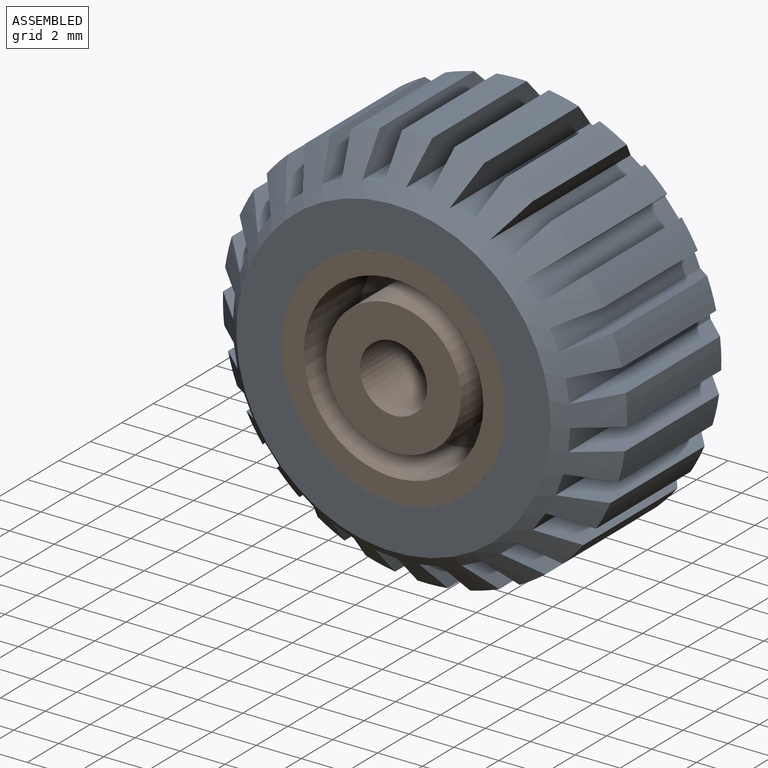
[diagram: assembled view]
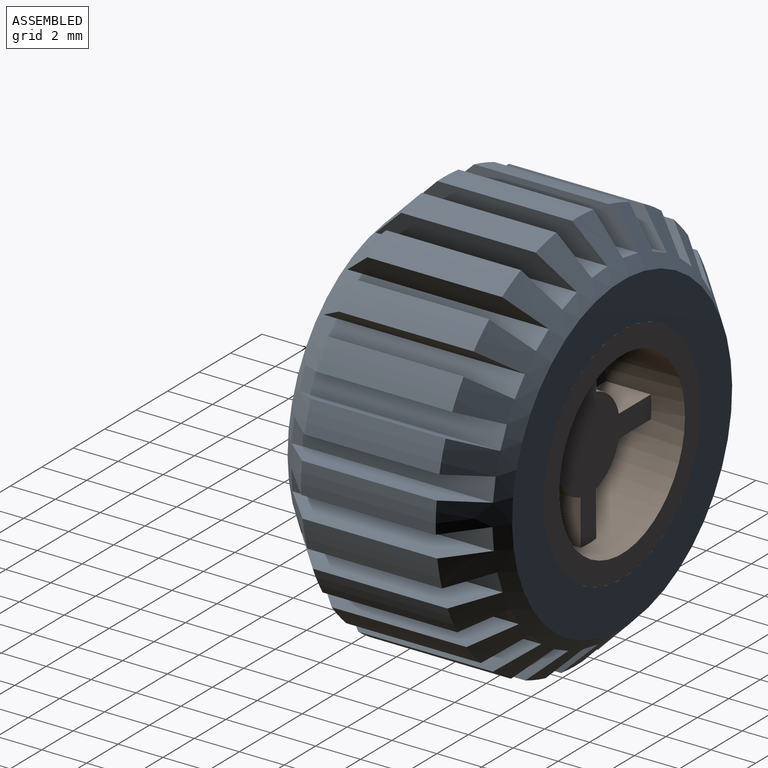
[diagram: assembled view, second angle]
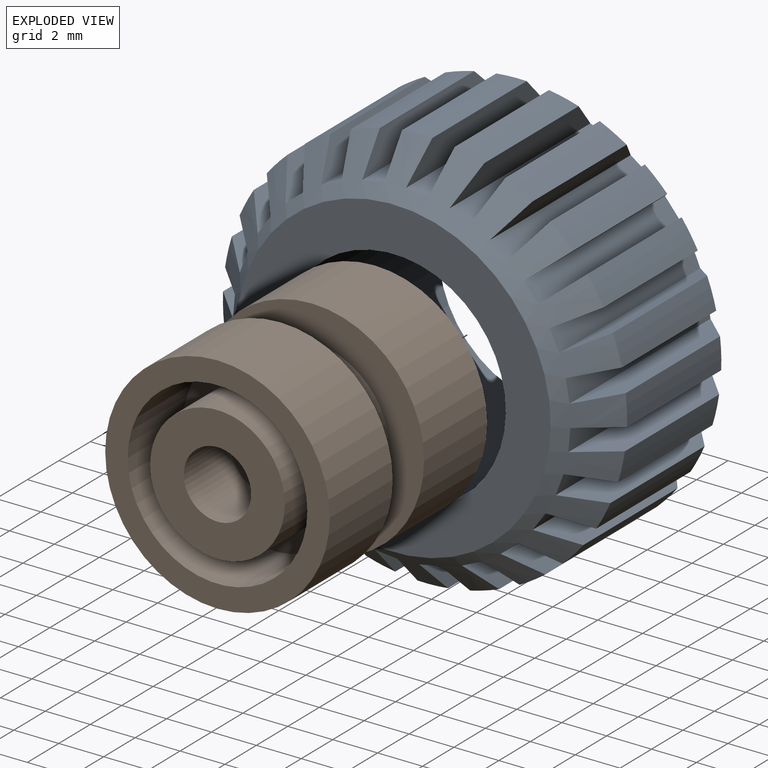
[diagram: exploded view]
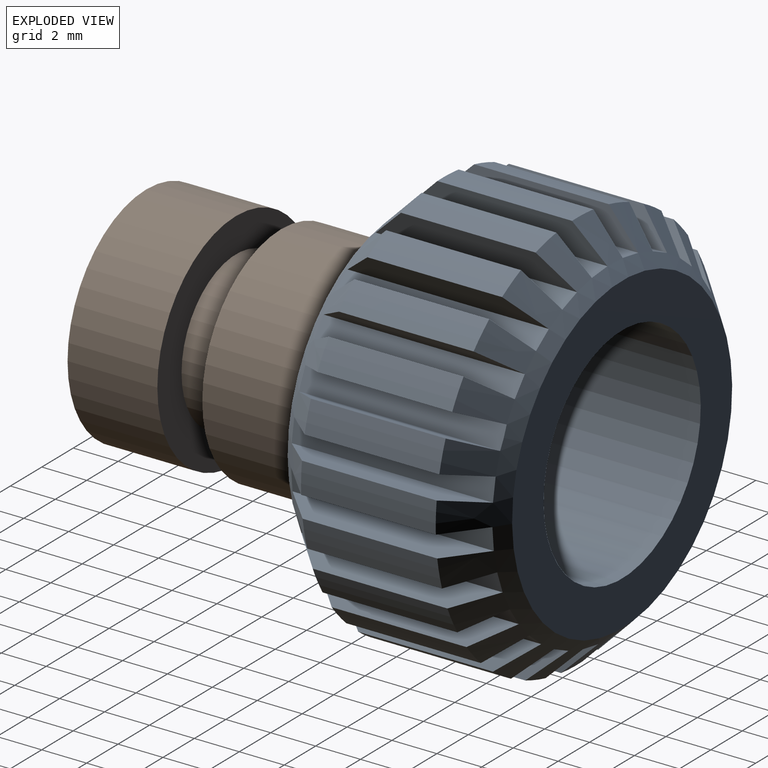
[diagram: exploded view, second angle]
ASSEMBLY  parts=2 mates=2
PART A: 101 faces, bbox 18x10x18 mm
  f0: cylinder r=9mm len=6mm, axis (0,1,0), area 8.1mm2, adj f1,f2,f31,f99
  f1: cone r=7mm half-angle=45deg, axis (0,1,0), area 91.5mm2, adj f0,f3,f4,f5,f6,f7,f8,f9
  f2: cone r=9mm half-angle=45deg, axis (0,-1,0), area 91.5mm2, adj f0,f3,f4,f5,f6,f7,f8,f9
  f3: cylinder r=9mm len=6mm, axis (0,1,0), area 8.1mm2, adj f1,f2,f96,f100
  f4: cylinder r=9mm len=6mm, axis (0,1,0), area 8.1mm2, adj f1,f2,f93,f97
  f5: cylinder r=9mm len=6mm, axis (0,1,0), area 8.1mm2, adj f1,f2,f90,f94
  f6: cylinder r=9mm len=6mm, axis (0,1,0), area 8.1mm2, adj f1,f2,f87,f91
  f7: cylinder r=9mm len=6mm, axis (0,1,0), area 8.1mm2, adj f1,f2,f84,f88
  f8: cylinder r=9mm len=6mm, axis (0,1,0), area 8.1mm2, adj f1,f2,f81,f85
  f9: cylinder r=9mm len=6mm, axis (0,1,0), area 8.1mm2, adj f1,f2,f78,f82
  f10: cylinder r=9mm len=6mm, axis (0,1,0), area 8.1mm2, adj f1,f2,f75,f79
  f11: cylinder r=9mm len=6mm, axis (0,1,0), area 8.1mm2, adj f1,f2,f72,f76
  f12: cylinder r=9mm len=6mm, axis (0,1,0), area 8.1mm2, adj f1,f2,f69,f73
  f13: cylinder r=9mm len=6mm, axis (0,1,0), area 8.1mm2, adj f1,f2,f66,f70
  f14: cylinder r=9mm len=6mm, axis (0,1,0), area 8.1mm2, adj f1,f2,f63,f67
  f15: cylinder r=9mm len=6mm, axis (0,1,0), area 8.1mm2, adj f1,f2,f60,f64
  f16: cylinder r=9mm len=6mm, axis (0,1,0), area 8.1mm2, adj f1,f2,f57,f61
  f17: cylinder r=9mm len=6mm, axis (0,1,0), area 8.1mm2, adj f1,f2,f54,f58
  f18: cylinder r=9mm len=6mm, axis (0,1,0), area 8.1mm2, adj f1,f2,f51,f55
  f19: cylinder r=9mm len=6mm, axis (0,1,0), area 8.1mm2, adj f1,f2,f48,f52
  f20: cylinder r=9mm len=6mm, axis (0,1,0), area 8.1mm2, adj f1,f2,f45,f49
  f21: cylinder r=9mm len=6mm, axis (0,1,0), area 8.1mm2, adj f1,f2,f42,f46
  f22: cylinder r=9mm len=6mm, axis (0,1,0), area 8.1mm2, adj f1,f2,f39,f43
  f23: cylinder r=9mm len=6mm, axis (0,1,0), area 8.1mm2, adj f1,f2,f36,f40
  f24: cylinder r=9mm len=6mm, axis (0,1,0), area 8.1mm2, adj f1,f2,f33,f37
  f25: cylinder r=9mm len=6mm, axis (0,1,0), area 8.1mm2, adj f1,f2,f30,f34
  f26: plane 14x14mm, normal (0,-1,0), area 75.4mm2, adj f1,f28
  f27: plane 14x14mm, normal (0,1,0), area 75.4mm2, adj f2,f28
  f28: cylinder r=5mm len=10mm, axis (0,1,0), area 314.2mm2, adj f26,f27
  f29: plane 9.05x1.05mm, normal (0,0,1), area 9mm2, adj f1,f2,f30,f31
  f30: plane 8.97x1.49mm, normal (-1,0,0), area 11.1mm2, adj f1,f2,f25,f29
  f31: plane 8.97x1.49mm, normal (1,0,0), area 11.1mm2, adj f0,f1,f2,f29
  f32: plane 9.05x1.01mm, normal (0.26,0,0.97), area 9mm2, adj f1,f2,f33,f34
  f33: plane 8.97x1.44mm, normal (-0.97,0,0.26), area 11.1mm2, adj f1,f2,f24,f32
  f34: plane 8.97x1.44mm, normal (0.97,0,-0.26), area 11.1mm2, adj f1,f2,f25,f32
  f35: plane 9.05x0.91mm, normal (0.5,0,0.87), area 9mm2, adj f1,f2,f36,f37
  f36: plane 8.97x1.3mm, normal (-0.87,0,0.5), area 11.1mm2, adj f1,f2,f23,f35
  f37: plane 8.97x1.3mm, normal (0.87,0,-0.5), area 11.1mm2, adj f1,f2,f24,f35
  f38: plane 9.05x0.75mm, normal (0.71,0,0.71), area 9mm2, adj f1,f2,f39,f40
  f39: plane 8.97x1.06mm, normal (-0.71,0,0.71), area 11.1mm2, adj f1,f2,f22,f38
  f40: plane 8.97x1.06mm, normal (0.71,0,-0.71), area 11.1mm2, adj f1,f2,f23,f38
  f41: plane 9.05x0.91mm, normal (0.87,0,0.5), area 9mm2, adj f1,f2,f42,f43
  f42: plane 8.97x1.3mm, normal (-0.5,0,0.87), area 11.1mm2, adj f1,f2,f21,f41
  f43: plane 8.97x1.3mm, normal (0.5,0,-0.87), area 11.1mm2, adj f1,f2,f22,f41
  f44: plane 9.05x1.01mm, normal (0.97,0,0.26), area 9mm2, adj f1,f2,f45,f46
  f45: plane 8.97x1.44mm, normal (-0.26,0,0.97), area 11.1mm2, adj f1,f2,f20,f44
  f46: plane 8.97x1.44mm, normal (0.26,0,-0.97), area 11.1mm2, adj f1,f2,f21,f44
  f47: plane 9.05x1.05mm, normal (1,0,0), area 9mm2, adj f1,f2,f48,f49
  f48: plane 8.97x1.49mm, normal (0,0,1), area 11.1mm2, adj f1,f2,f19,f47
  f49: plane 8.97x1.49mm, normal (0,0,-1), area 11.1mm2, adj f1,f2,f20,f47
  f50: plane 9.05x1.01mm, normal (0.97,0,-0.26), area 9mm2, adj f1,f2,f51,f52
  f51: plane 8.97x1.44mm, normal (0.26,0,0.97), area 11.1mm2, adj f1,f2,f18,f50
  f52: plane 8.97x1.44mm, normal (-0.26,0,-0.97), area 11.1mm2, adj f1,f2,f19,f50
  f53: plane 9.05x0.91mm, normal (0.87,0,-0.5), area 9mm2, adj f1,f2,f54,f55
  f54: plane 8.97x1.3mm, normal (0.5,0,0.87), area 11.1mm2, adj f1,f2,f17,f53
  f55: plane 8.97x1.3mm, normal (-0.5,0,-0.87), area 11.1mm2, adj f1,f2,f18,f53
  f56: plane 9.05x0.75mm, normal (0.71,0,-0.71), area 9mm2, adj f1,f2,f57,f58
  f57: plane 8.97x1.06mm, normal (0.71,0,0.71), area 11.1mm2, adj f1,f2,f16,f56
  f58: plane 8.97x1.06mm, normal (-0.71,0,-0.71), area 11.1mm2, adj f1,f2,f17,f56
  f59: plane 9.05x0.91mm, normal (0.5,0,-0.87), area 9mm2, adj f1,f2,f60,f61
  f60: plane 8.97x1.3mm, normal (0.87,0,0.5), area 11.1mm2, adj f1,f2,f15,f59
  f61: plane 8.97x1.3mm, normal (-0.87,0,-0.5), area 11.1mm2, adj f1,f2,f16,f59
  f62: plane 9.05x1.01mm, normal (0.26,0,-0.97), area 9mm2, adj f1,f2,f63,f64
  f63: plane 8.97x1.44mm, normal (0.97,0,0.26), area 11.1mm2, adj f1,f2,f14,f62
  f64: plane 8.97x1.44mm, normal (-0.97,0,-0.26), area 11.1mm2, adj f1,f2,f15,f62
  f65: plane 9.05x1.05mm, normal (0,0,-1), area 9mm2, adj f1,f2,f66,f67
  f66: plane 8.97x1.49mm, normal (1,0,0), area 11.1mm2, adj f1,f2,f13,f65
  f67: plane 8.97x1.49mm, normal (-1,0,0), area 11.1mm2, adj f1,f2,f14,f65
  f68: plane 9.05x1.01mm, normal (-0.26,0,-0.97), area 9mm2, adj f1,f2,f69,f70
  f69: plane 8.97x1.44mm, normal (0.97,0,-0.26), area 11.1mm2, adj f1,f2,f12,f68
  f70: plane 8.97x1.44mm, normal (-0.97,0,0.26), area 11.1mm2, adj f1,f2,f13,f68
  f71: plane 9.05x0.91mm, normal (-0.5,0,-0.87), area 9mm2, adj f1,f2,f72,f73
  f72: plane 8.97x1.3mm, normal (0.87,0,-0.5), area 11.1mm2, adj f1,f2,f11,f71
  f73: plane 8.97x1.3mm, normal (-0.87,0,0.5), area 11.1mm2, adj f1,f2,f12,f71
  f74: plane 9.05x0.75mm, normal (-0.71,0,-0.71), area 9mm2, adj f1,f2,f75,f76
  f75: plane 8.97x1.06mm, normal (0.71,0,-0.71), area 11.1mm2, adj f1,f2,f10,f74
  f76: plane 8.97x1.06mm, normal (-0.71,0,0.71), area 11.1mm2, adj f1,f2,f11,f74
  f77: plane 9.05x0.91mm, normal (-0.87,0,-0.5), area 9mm2, adj f1,f2,f78,f79
  f78: plane 8.97x1.3mm, normal (0.5,0,-0.87), area 11.1mm2, adj f1,f2,f9,f77
  f79: plane 8.97x1.3mm, normal (-0.5,0,0.87), area 11.1mm2, adj f1,f2,f10,f77
  f80: plane 9.05x1.01mm, normal (-0.97,0,-0.26), area 9mm2, adj f1,f2,f81,f82
  f81: plane 8.97x1.44mm, normal (0.26,0,-0.97), area 11.1mm2, adj f1,f2,f8,f80
  f82: plane 8.97x1.44mm, normal (-0.26,0,0.97), area 11.1mm2, adj f1,f2,f9,f80
  f83: plane 9.05x1.05mm, normal (-1,0,0), area 9mm2, adj f1,f2,f84,f85
  f84: plane 8.97x1.49mm, normal (0,0,-1), area 11.1mm2, adj f1,f2,f7,f83
  f85: plane 8.97x1.49mm, normal (0,0,1), area 11.1mm2, adj f1,f2,f8,f83
  f86: plane 9.05x1.01mm, normal (-0.97,0,0.26), area 9mm2, adj f1,f2,f87,f88
  f87: plane 8.97x1.44mm, normal (-0.26,0,-0.97), area 11.1mm2, adj f1,f2,f6,f86
  f88: plane 8.97x1.44mm, normal (0.26,0,0.97), area 11.1mm2, adj f1,f2,f7,f86
  f89: plane 9.05x0.91mm, normal (-0.87,0,0.5), area 9mm2, adj f1,f2,f90,f91
  f90: plane 8.97x1.3mm, normal (-0.5,0,-0.87), area 11.1mm2, adj f1,f2,f5,f89
  f91: plane 8.97x1.3mm, normal (0.5,0,0.87), area 11.1mm2, adj f1,f2,f6,f89
  f92: plane 9.05x0.75mm, normal (-0.71,0,0.71), area 9mm2, adj f1,f2,f93,f94
  f93: plane 8.97x1.06mm, normal (-0.71,0,-0.71), area 11.1mm2, adj f1,f2,f4,f92
  f94: plane 8.97x1.06mm, normal (0.71,0,0.71), area 11.1mm2, adj f1,f2,f5,f92
  f95: plane 9.05x0.91mm, normal (-0.5,0,0.87), area 9mm2, adj f1,f2,f96,f97
  f96: plane 8.97x1.3mm, normal (-0.87,0,-0.5), area 11.1mm2, adj f1,f2,f3,f95
  f97: plane 8.97x1.3mm, normal (0.87,0,0.5), area 11.1mm2, adj f1,f2,f4,f95
  f98: plane 9.05x1.01mm, normal (-0.26,0,0.97), area 9mm2, adj f1,f2,f99,f100
  f99: plane 8.97x1.44mm, normal (-0.97,0,-0.26), area 11.1mm2, adj f0,f1,f2,f98
  f100: plane 8.97x1.44mm, normal (0.97,0,0.26), area 11.1mm2, adj f1,f2,f3,f98
PART B: 31 faces, bbox 10x10x10 mm
  f0: cylinder r=4mm len=8mm, axis (0,-1,0), area 79.9mm2, adj f1,f2,f3,f14,f15,f16,f18,f19
  f1: plane 3.47x3.47mm, normal (0,1,0), area 7.4mm2, adj f0,f16,f17,f18
  f2: plane 3.47x3.47mm, normal (0,1,0), area 7.4mm2, adj f0,f19,f20,f21
  f3: plane 3.47x3.47mm, normal (0,1,0), area 7.4mm2, adj f0,f22,f23,f24
  f4: plane 6x6mm, normal (0,-1,0), area 21.2mm2, adj f5,f29
  f5: cylinder r=3mm len=6mm, axis (0,-1,0), area 66mm2, adj f4,f6
  f6: plane 8x8mm, normal (0,-1,0), area 22mm2, adj f5,f7
  f7: cylinder r=4mm len=8mm, axis (0,-1,0), area 88mm2, adj f6,f8
  f8: plane 10x10mm, normal (0,-1,0), area 28.3mm2, adj f7,f9
  f9: cylinder r=5mm len=10mm, axis (0,-1,0), area 125.7mm2, adj f8,f10
  f10: plane 10x10mm, normal (0,1,0), area 40.9mm2, adj f9,f11
  f11: cylinder r=3.46mm len=6.93mm, axis (0,-1,0), area 43.5mm2, adj f10,f12
  f12: plane 10x10mm, normal (0,-1,0), area 40.9mm2, adj f11,f13
  f13: cylinder r=5mm len=10mm, axis (0,-1,0), area 125.7mm2, adj f12,f14
  f14: plane 10x10mm, normal (0,1,0), area 28.3mm2, adj f0,f13
  f15: plane 3.47x3.47mm, normal (0,1,0), area 7.4mm2, adj f0,f25,f26,f27
  f16: plane 2.03x2mm, normal (0,0,1), area 4.1mm2, adj f0,f1,f17,f28
  f17: cylinder r=2mm len=2mm, axis (0,-1,0), area 4.3mm2, adj f1,f16,f18,f28
  f18: plane 2.03x2mm, normal (-1,0,0), area 4.1mm2, adj f0,f1,f17,f28
  f19: plane 2.03x2mm, normal (1,0,0), area 4.1mm2, adj f0,f2,f20,f28
  f20: cylinder r=2mm len=2mm, axis (0,-1,0), area 4.3mm2, adj f2,f19,f21,f28
  f21: plane 2.03x2mm, normal (0,0,1), area 4.1mm2, adj f0,f2,f20,f28
  f22: plane 2.03x2mm, normal (0,0,-1), area 4.1mm2, adj f0,f3,f23,f28
  f23: cylinder r=2mm len=2mm, axis (0,-1,0), area 4.3mm2, adj f3,f22,f24,f28
  f24: plane 2.03x2mm, normal (1,0,0), area 4.1mm2, adj f0,f3,f23,f28
  f25: plane 2.03x2mm, normal (-1,0,0), area 4.1mm2, adj f0,f15,f26,f28
  f26: cylinder r=2mm len=2mm, axis (0,-1,0), area 4.3mm2, adj f15,f25,f27,f28
  f27: plane 2.03x2mm, normal (0,0,-1), area 4.1mm2, adj f0,f15,f26,f28
  f28: plane 8x8mm, normal (0,1,0), area 20.6mm2, adj f0,f16,f17,f18,f19,f20,f21,f22
  f29: cylinder r=1.5mm len=3mm, axis (0,-1,0), area 28.3mm2, adj f4,f30
  f30: plane 3x3mm, normal (0,-1,0), area 7.1mm2, adj f29
PLACE A rot(axis=(0,-1,0),24.7deg) t=(33.5,24.3,-15.22)mm
PLACE B rot(axis=(0,0,1),0deg) t=(33.5,19.3,-15.22)mm
MATE planar A.f0 <-> B.f0  axis (0,1,0) through (33.5,24.3,-15.22)mm
MATE cylindrical B.f0 <-> A.f0  axis (0,-1,0) through (33.5,22.3,-15.22)mm
